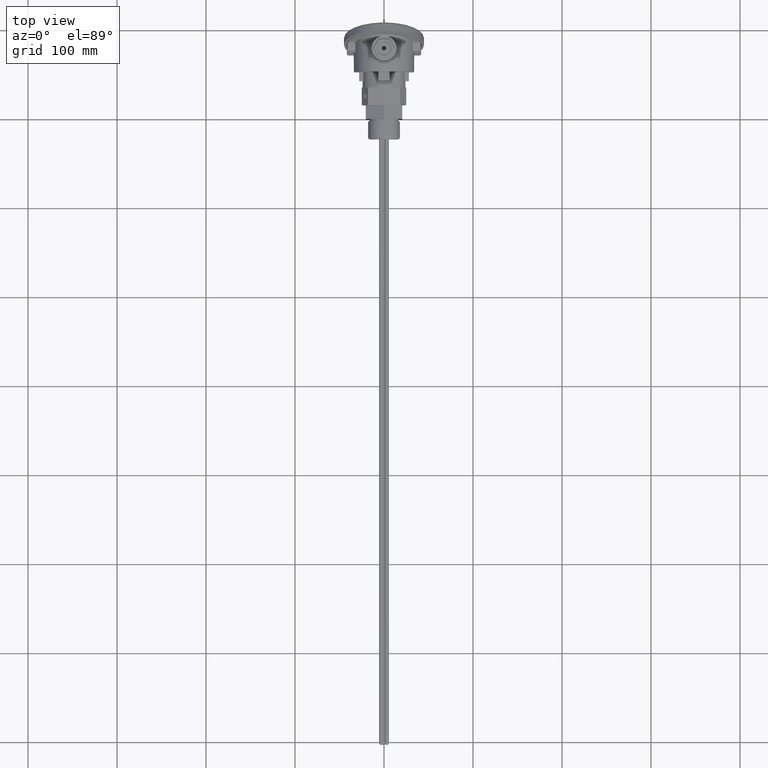
[diagram: clean part render]
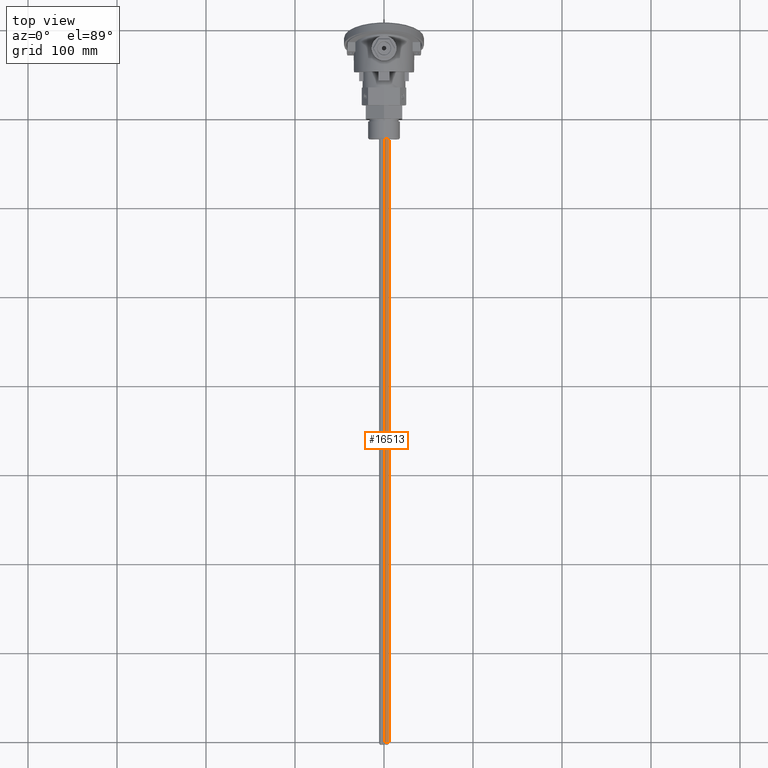
[diagram: same view with one face highlighted and labeled with its STEP entity id]
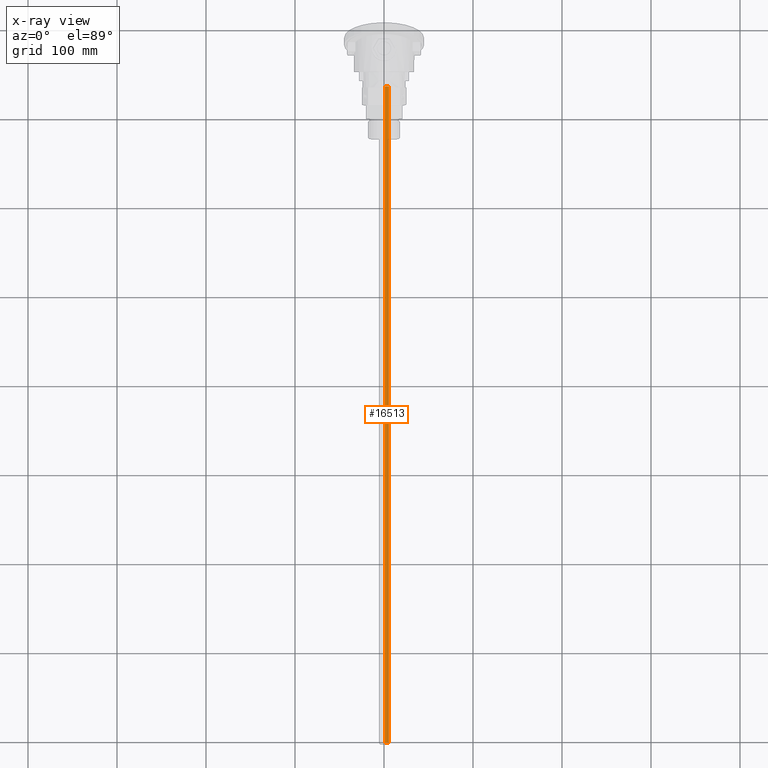
[diagram: x-ray of the same camera — body ghosted, the highlighted face saturated]
A machine part, top view. The second image highlights one B-rep face of the part: STEP entity #16513.
The next image is the same camera in x-ray: the body ghosted, the highlighted face saturated — about 0% of this face is hidden behind the body in this view.
In plain terms, the highlighted cylindrical surface (edge-blend (fillet) strip) has radius 2.5 mm, axis along (-0, -1, 0).
Its self-contained STEP definition (entity closure, byte-faithful):
#343 = VERTEX_POINT ( 'NONE', #10100 ) ;
#537 = AXIS2_PLACEMENT_3D ( 'NONE', #1055, #7051, #16259 ) ;
#1055 = CARTESIAN_POINT ( 'NONE',  ( 0.000000000000000000, 0.000000000000000000, 0.000000000000000000 ) ) ;
#1135 = LINE ( 'NONE', #4009, #17254 ) ;
#1321 = AXIS2_PLACEMENT_3D ( 'NONE', #13085, #19075, #16324 ) ;
#1412 = LINE ( 'NONE', #1505, #15112 ) ;
#1490 = VERTEX_POINT ( 'NONE', #12404 ) ;
#1505 = CARTESIAN_POINT ( 'NONE',  ( 0.000000000000000000, 737.5000000000000000, -2.500000000000000000 ) ) ;
#1841 = EDGE_CURVE ( 'NONE', #4398, #7277, #2120, .T. ) ;
#2096 = ORIENTED_EDGE ( 'NONE', *, *, #17487, .F. ) ;
#2120 = CIRCLE ( 'NONE', #537, 2.500000000000000000 ) ;
#2146 = ORIENTED_EDGE ( 'NONE', *, *, #5932, .F. ) ;
#2233 = ORIENTED_EDGE ( 'NONE', *, *, #1841, .T. ) ;
#2259 = DIRECTION ( 'NONE',  ( -0.000000000000000000, -1.000000000000000000, -0.000000000000000000 ) ) ;
#2646 = FACE_OUTER_BOUND ( 'NONE', #12383, .T. ) ;
#3313 = CARTESIAN_POINT ( 'NONE',  ( -2.500000000000000000, 0.000000000000000000, 0.000000000000000000 ) ) ;
#3726 = ORIENTED_EDGE ( 'NONE', *, *, #17394, .T. ) ;
#4009 = CARTESIAN_POINT ( 'NONE',  ( 3.061616997868383141E-16, 737.5000000000000000, 2.500000000000000000 ) ) ;
#4039 = DIRECTION ( 'NONE',  ( 0.000000000000000000, 0.000000000000000000, -1.000000000000000000 ) ) ;
#4157 = CARTESIAN_POINT ( 'NONE',  ( 3.061616997868383141E-16, 737.5000000000000000, 2.500000000000000000 ) ) ;
#4398 = VERTEX_POINT ( 'NONE', #10519 ) ;
#4840 = DIRECTION ( 'NONE',  ( -0.000000000000000000, 1.000000000000000000, -0.000000000000000000 ) ) ;
#5932 = EDGE_CURVE ( 'NONE', #14520, #1490, #1135, .T. ) ;
#6033 = CIRCLE ( 'NONE', #1321, 2.500000000000000000 ) ;
#7051 = DIRECTION ( 'NONE',  ( -0.000000000000000000, 1.000000000000000000, -0.000000000000000000 ) ) ;
#7277 = VERTEX_POINT ( 'NONE', #3313 ) ;
#7339 = ORIENTED_EDGE ( 'NONE', *, *, #8119, .T. ) ;
#7405 = DIRECTION ( 'NONE',  ( -0.000000000000000000, -1.000000000000000000, -0.000000000000000000 ) ) ;
#7417 = DIRECTION ( 'NONE',  ( -0.000000000000000000, -1.000000000000000000, -0.000000000000000000 ) ) ;
#7769 = CARTESIAN_POINT ( 'NONE',  ( 0.000000000000000000, 0.000000000000000000, 0.000000000000000000 ) ) ;
#8119 = EDGE_CURVE ( 'NONE', #7277, #1490, #18663, .T. ) ;
#8321 = AXIS2_PLACEMENT_3D ( 'NONE', #7769, #4840, #10812 ) ;
#8637 = CYLINDRICAL_SURFACE ( 'NONE', #15726, 2.500000000000000000 ) ;
#10100 = CARTESIAN_POINT ( 'NONE',  ( 0.000000000000000000, 737.5000000000000000, -2.500000000000000000 ) ) ;
#10519 = CARTESIAN_POINT ( 'NONE',  ( 0.000000000000000000, 0.000000000000000000, -2.500000000000000000 ) ) ;
#10812 = DIRECTION ( 'NONE',  ( 0.000000000000000000, 0.000000000000000000, 1.000000000000000000 ) ) ;
#12383 = EDGE_LOOP ( 'NONE', ( #2146, #2096, #3726, #2233, #7339 ) ) ;
#12404 = CARTESIAN_POINT ( 'NONE',  ( 3.061616997868383141E-16, 0.000000000000000000, 2.500000000000000000 ) ) ;
#12938 = CARTESIAN_POINT ( 'NONE',  ( 0.000000000000000000, 737.5000000000000000, 0.000000000000000000 ) ) ;
#13085 = CARTESIAN_POINT ( 'NONE',  ( 0.000000000000000000, 737.5000000000000000, 0.000000000000000000 ) ) ;
#14520 = VERTEX_POINT ( 'NONE', #4157 ) ;
#15112 = VECTOR ( 'NONE', #7405, 1000.000000000000000 ) ;
#15726 = AXIS2_PLACEMENT_3D ( 'NONE', #12938, #2259, #4039 ) ;
#16259 = DIRECTION ( 'NONE',  ( 0.000000000000000000, 0.000000000000000000, 1.000000000000000000 ) ) ;
#16324 = DIRECTION ( 'NONE',  ( 0.000000000000000000, 0.000000000000000000, 1.000000000000000000 ) ) ;
#16513 = ADVANCED_FACE ( 'NONE', ( #2646 ), #8637, .T. ) ;
#17254 = VECTOR ( 'NONE', #7417, 1000.000000000000000 ) ;
#17394 = EDGE_CURVE ( 'NONE', #343, #4398, #1412, .T. ) ;
#17487 = EDGE_CURVE ( 'NONE', #343, #14520, #6033, .T. ) ;
#18663 = CIRCLE ( 'NONE', #8321, 2.500000000000000000 ) ;
#19075 = DIRECTION ( 'NONE',  ( 0.000000000000000000, 1.000000000000000000, 0.000000000000000000 ) ) ;